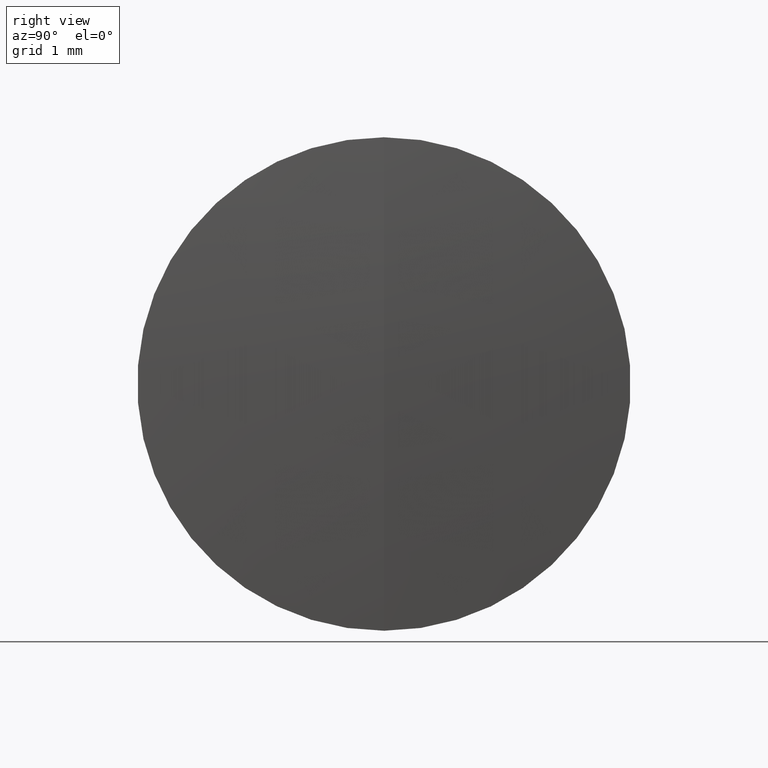
[diagram: clean part render]
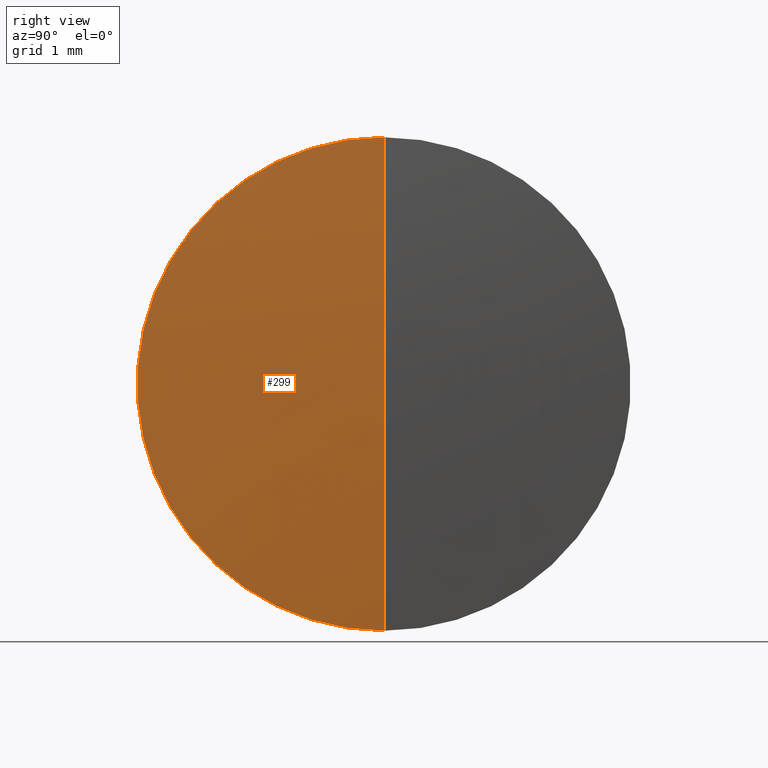
[diagram: same view with one face highlighted and labeled with its STEP entity id]
A machine part, right view. The second image highlights one B-rep face of the part: STEP entity #299.
In plain terms, the highlighted spherical surface has radius 47.8 mm.
Its self-contained STEP definition (entity closure, byte-faithful):
#31 = VERTEX_POINT ( 'NONE', #191 ) ;
#49 = ORIENTED_EDGE ( 'NONE', *, *, #140, .T. ) ;
#68 = CIRCLE ( 'NONE', #230, 3.999999999999998200 ) ;
#72 = CIRCLE ( 'NONE', #319, 47.79999999999996900 ) ;
#76 = DIRECTION ( 'NONE',  ( 0.0000000000000000000, 1.000000000000000000, 0.0000000000000000000 ) ) ;
#89 = DIRECTION ( 'NONE',  ( -1.000000000000000000, -0.0000000000000000000, -0.0000000000000000000 ) ) ;
#95 = DIRECTION ( 'NONE',  ( -0.0000000000000000000, 1.000000000000000000, 1.224646799147353200E-016 ) ) ;
#120 = SPHERICAL_SURFACE ( 'NONE', #200, 47.79999999999996900 ) ;
#121 = CARTESIAN_POINT ( 'NONE',  ( 269.2354164445880500, 0.0000000000000000000, 0.0000000000000000000 ) ) ;
#129 = CIRCLE ( 'NONE', #288, 47.79999999999996900 ) ;
#135 = VERTEX_POINT ( 'NONE', #182 ) ;
#140 = EDGE_CURVE ( 'NONE', #135, #158, #129, .T. ) ;
#158 = VERTEX_POINT ( 'NONE', #240 ) ;
#174 = CARTESIAN_POINT ( 'NONE',  ( 221.6030744908272800, 0.0000000000000000000, 0.0000000000000000000 ) ) ;
#182 = CARTESIAN_POINT ( 'NONE',  ( 269.4030744908272400, 0.0000000000000000000, 2.926905849962172200E-015 ) ) ;
#183 = EDGE_CURVE ( 'NONE', #135, #31, #72, .T. ) ;
#184 = CARTESIAN_POINT ( 'NONE',  ( 221.6030744908272800, 0.0000000000000000000, 0.0000000000000000000 ) ) ;
#191 = CARTESIAN_POINT ( 'NONE',  ( 269.2354164445880500, 4.898587196589410900E-016, -3.999999999999998200 ) ) ;
#200 = AXIS2_PLACEMENT_3D ( 'NONE', #184, #76, #272 ) ;
#210 = EDGE_LOOP ( 'NONE', ( #228, #49, #295 ) ) ;
#228 = ORIENTED_EDGE ( 'NONE', *, *, #183, .F. ) ;
#230 = AXIS2_PLACEMENT_3D ( 'NONE', #121, #89, #279 ) ;
#240 = CARTESIAN_POINT ( 'NONE',  ( 269.2354164445880500, 0.0000000000000000000, 3.999999999999998200 ) ) ;
#258 = CARTESIAN_POINT ( 'NONE',  ( 221.6030744908272800, 0.0000000000000000000, 0.0000000000000000000 ) ) ;
#263 = DIRECTION ( 'NONE',  ( 0.0000000000000000000, -1.000000000000000000, 0.0000000000000000000 ) ) ;
#265 = FACE_OUTER_BOUND ( 'NONE', #210, .T. ) ;
#272 = DIRECTION ( 'NONE',  ( 0.0000000000000000000, 0.0000000000000000000, 1.000000000000000000 ) ) ;
#279 = DIRECTION ( 'NONE',  ( 0.0000000000000000000, 0.0000000000000000000, 1.000000000000000000 ) ) ;
#288 = AXIS2_PLACEMENT_3D ( 'NONE', #258, #263, #304 ) ;
#295 = ORIENTED_EDGE ( 'NONE', *, *, #305, .F. ) ;
#299 = ADVANCED_FACE ( 'NONE', ( #265 ), #120, .T. ) ;
#304 = DIRECTION ( 'NONE',  ( 0.0000000000000000000, 0.0000000000000000000, -1.000000000000000000 ) ) ;
#305 = EDGE_CURVE ( 'NONE', #31, #158, #68, .T. ) ;
#312 = DIRECTION ( 'NONE',  ( 0.0000000000000000000, -1.224646799147353200E-016, 1.000000000000000000 ) ) ;
#319 = AXIS2_PLACEMENT_3D ( 'NONE', #174, #95, #312 ) ;